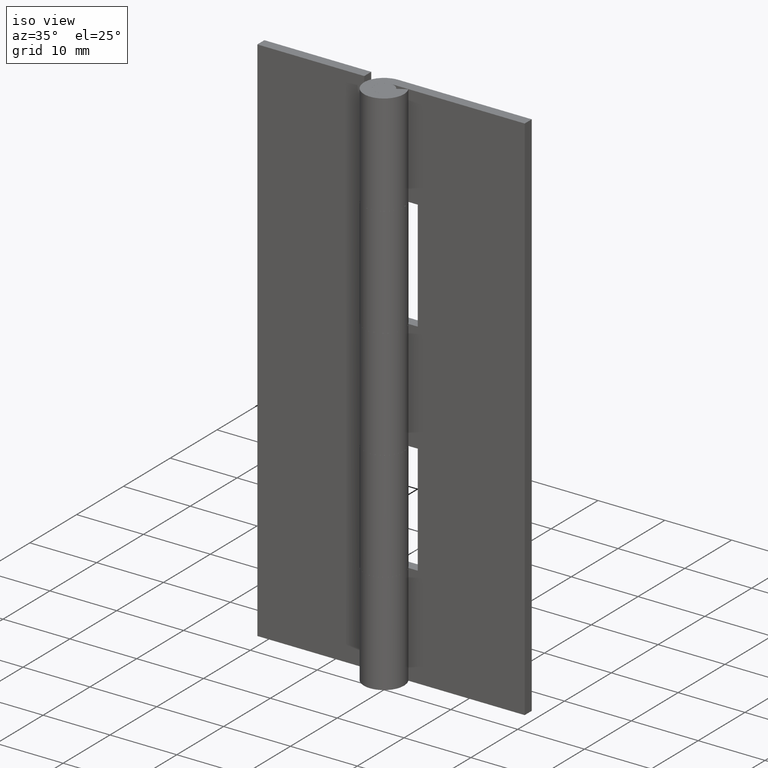
[diagram: clean part render]
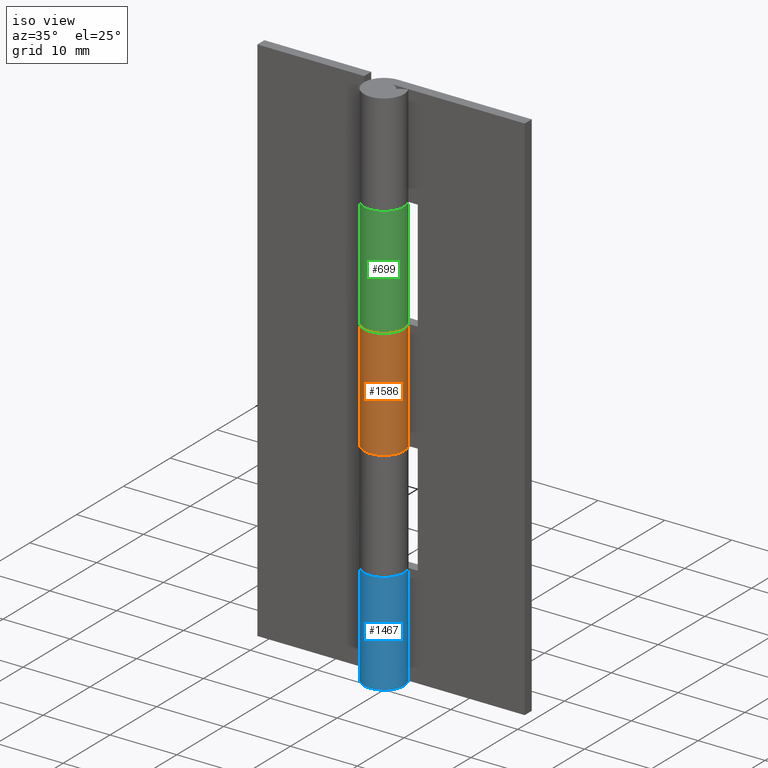
[diagram: same view with three faces highlighted in distinct colors, each labeled with its STEP entity id]
A machine part, iso view with three faces highlighted in distinct colors.
Their STEP definitions:

[orange] entity #1586 — the highlighted face is a freeform B-spline surface patch.
#766=CARTESIAN_POINT('',(2.626309197333780,1.450000000000000,31.750000000000000));
#767=VERTEX_POINT('',#766);
#768=CARTESIAN_POINT('',(-5.510743E-016,3.0,31.750000000000000));
#769=VERTEX_POINT('',#768);
#770=CARTESIAN_POINT('',(2.626309197333780,1.450000000000000,31.750000000000000));
#771=CARTESIAN_POINT('',(3.733431584505770,-0.555272902071675,31.750000000000004));
#772=CARTESIAN_POINT('',(2.090650590886091,-2.151552952364324,31.750000000000000));
#773=CARTESIAN_POINT('',(0.447869597266413,-3.747833002656972,31.750000000000004));
#774=CARTESIAN_POINT('',(-1.524795068197689,-2.583602136552764,31.750000000000000));
#775=CARTESIAN_POINT('',(-3.497459733661792,-1.419371270448555,31.750000000000004));
#776=CARTESIAN_POINT('',(-2.894028888043301,0.790314364775722,31.750000000000000));
#777=CARTESIAN_POINT('',(-2.290598042424809,3.000000000000000,31.750000000000004));
#778=CARTESIAN_POINT('',(0.0,3.0,31.750000000000000));
#786=(BOUNDED_CURVE()B_SPLINE_CURVE(2,(#770,#771,#772,#773,#774,#775,#776,#777,#778),.UNSPECIFIED.,.F.,.U.)B_SPLINE_CURVE_WITH_KNOTS((3,2,2,2,3),(0.0,0.250000000000000,0.500000000000000,0.750000000000000,1.0),.UNSPECIFIED.)CURVE()GEOMETRIC_REPRESENTATION_ITEM()RATIONAL_B_SPLINE_CURVE((1.0,0.794807562115481,1.0,0.794807562115481,1.0,0.794807562115481,1.0,0.794807562115481,1.0))REPRESENTATION_ITEM(''));
#787=EDGE_CURVE('',#767,#769,#786,.T.);
#958=CARTESIAN_POINT('',(-5.510729E-016,3.0,48.250000000000000));
#959=VERTEX_POINT('',#958);
#965=CARTESIAN_POINT('',(2.626309197333780,1.450000000000000,48.250000000000000));
#966=VERTEX_POINT('',#965);
#967=CARTESIAN_POINT('',(0.0,3.0,48.250000000000000));
#968=CARTESIAN_POINT('',(-2.290598042424808,3.0,48.250000000000007));
#969=CARTESIAN_POINT('',(-2.894028888043301,0.790314364775724,48.250000000000000));
#970=CARTESIAN_POINT('',(-3.497459733661794,-1.419371270448550,48.250000000000007));
#971=CARTESIAN_POINT('',(-1.524795068197693,-2.583602136552761,48.250000000000000));
#972=CARTESIAN_POINT('',(0.447869597266408,-3.747833002656974,48.250000000000007));
#973=CARTESIAN_POINT('',(2.090650590886088,-2.151552952364328,48.250000000000000));
#974=CARTESIAN_POINT('',(3.733431584505768,-0.555272902071681,48.250000000000007));
#975=CARTESIAN_POINT('',(2.626309197333781,1.449999999999996,48.250000000000000));
#983=(BOUNDED_CURVE()B_SPLINE_CURVE(2,(#967,#968,#969,#970,#971,#972,#973,#974,#975),.UNSPECIFIED.,.F.,.U.)B_SPLINE_CURVE_WITH_KNOTS((3,2,2,2,3),(0.0,0.250000000000000,0.500000000000000,0.750000000000000,1.0),.UNSPECIFIED.)CURVE()GEOMETRIC_REPRESENTATION_ITEM()RATIONAL_B_SPLINE_CURVE((1.0,0.794807562115481,1.0,0.794807562115481,1.0,0.794807562115481,1.0,0.794807562115481,1.0))REPRESENTATION_ITEM(''));
#984=EDGE_CURVE('',#959,#966,#983,.T.);
#1318=CARTESIAN_POINT('',(2.626309197333780,1.450000000000000,48.250000000000000));
#1319=CARTESIAN_POINT('',(2.626309197333780,1.450000000000000,31.750000000000000));
#1320=QUASI_UNIFORM_CURVE('',1,(#1318,#1319),.UNSPECIFIED.,.F.,.U.);
#1321=EDGE_CURVE('',#966,#767,#1320,.T.);
#1415=CARTESIAN_POINT('',(-5.510729E-016,3.0,48.250000000000000));
#1416=CARTESIAN_POINT('',(-5.510743E-016,3.0,31.750000000000000));
#1417=QUASI_UNIFORM_CURVE('',1,(#1415,#1416),.UNSPECIFIED.,.F.,.U.);
#1418=EDGE_CURVE('',#959,#769,#1417,.T.);
#1558=CARTESIAN_POINT('',(0.083590388003215,2.998835215051582,48.662500000000001));
#1559=CARTESIAN_POINT('',(0.083590388003215,2.998835215051582,31.327187499999990));
#1560=CARTESIAN_POINT('',(-3.597715494687123,3.101448985074057,48.662500000000009));
#1561=CARTESIAN_POINT('',(-3.597715494687123,3.101448985074057,31.327187500000001));
#1562=CARTESIAN_POINT('',(-2.953784589413351,-0.524553714450863,48.662500000000001));
#1563=CARTESIAN_POINT('',(-2.953784589413351,-0.524553714450863,31.327187499999990));
#1564=CARTESIAN_POINT('',(-2.309853684139579,-4.150556413975786,48.662500000000009));
#1565=CARTESIAN_POINT('',(-2.309853684139579,-4.150556413975786,31.327187500000001));
#1566=CARTESIAN_POINT('',(1.111023909722692,-2.786687257663569,48.662500000000001));
#1567=CARTESIAN_POINT('',(1.111023909722692,-2.786687257663569,31.327187499999990));
#1568=CARTESIAN_POINT('',(4.531901503584964,-1.422818101351353,48.662500000000009));
#1569=CARTESIAN_POINT('',(4.531901503584964,-1.422818101351353,31.327187500000001));
#1570=CARTESIAN_POINT('',(2.504447473759407,1.651587978637567,48.662500000000001));
#1571=CARTESIAN_POINT('',(2.504447473759407,1.651587978637567,31.327187499999990));
#1579=(BOUNDED_SURFACE()B_SPLINE_SURFACE(1,2,((#1558,#1560,#1562,#1564,#1566,#1568,#1570),(#1559,#1561,#1563,#1565,#1567,#1569,#1571)),.UNSPECIFIED.,.F.,.F.,.U.)B_SPLINE_SURFACE_WITH_KNOTS((2,2),(3,2,2,3),(0.0,17.335312500000011),(0.0,5.702297214197751,11.404594428395500,17.106891642593251),.UNSPECIFIED.)GEOMETRIC_REPRESENTATION_ITEM()RATIONAL_B_SPLINE_SURFACE(((1.0,0.631578351302498,1.0,0.631578351302498,1.0,0.631578351302498,1.0),(1.0,0.631578351302498,1.0,0.631578351302498,1.0,0.631578351302498,1.0)))REPRESENTATION_ITEM('')SURFACE());
#1580=ORIENTED_EDGE('',*,*,#787,.F.);
#1581=ORIENTED_EDGE('',*,*,#1321,.F.);
#1582=ORIENTED_EDGE('',*,*,#984,.F.);
#1583=ORIENTED_EDGE('',*,*,#1418,.T.);
#1584=EDGE_LOOP('',(#1580,#1581,#1582,#1583));
#1585=FACE_OUTER_BOUND('',#1584,.T.);
#1586=ADVANCED_FACE('',(#1585),#1579,.T.);

[blue] entity #1467 — the highlighted face is a freeform B-spline surface patch.
#872=CARTESIAN_POINT('',(-5.510743E-016,3.0,15.250000000000000));
#873=VERTEX_POINT('',#872);
#874=CARTESIAN_POINT('',(2.626309197333780,1.450000000000000,15.250000000000000));
#875=VERTEX_POINT('',#874);
#876=CARTESIAN_POINT('',(0.0,3.0,15.250000000000000));
#877=CARTESIAN_POINT('',(-2.290598042424808,3.0,15.250000000000005));
#878=CARTESIAN_POINT('',(-2.894028888043301,0.790314364775724,15.250000000000000));
#879=CARTESIAN_POINT('',(-3.497459733661794,-1.419371270448550,15.250000000000005));
#880=CARTESIAN_POINT('',(-1.524795068197693,-2.583602136552761,15.250000000000000));
#881=CARTESIAN_POINT('',(0.447869597266408,-3.747833002656974,15.250000000000005));
#882=CARTESIAN_POINT('',(2.090650590886088,-2.151552952364328,15.250000000000000));
#883=CARTESIAN_POINT('',(3.733431584505768,-0.555272902071681,15.250000000000005));
#884=CARTESIAN_POINT('',(2.626309197333781,1.449999999999996,15.250000000000000));
#892=(BOUNDED_CURVE()B_SPLINE_CURVE(2,(#876,#877,#878,#879,#880,#881,#882,#883,#884),.UNSPECIFIED.,.F.,.U.)B_SPLINE_CURVE_WITH_KNOTS((3,2,2,2,3),(0.0,0.250000000000000,0.500000000000000,0.750000000000000,1.0),.UNSPECIFIED.)CURVE()GEOMETRIC_REPRESENTATION_ITEM()RATIONAL_B_SPLINE_CURVE((1.0,0.794807562115481,1.0,0.794807562115481,1.0,0.794807562115481,1.0,0.794807562115481,1.0))REPRESENTATION_ITEM(''));
#893=EDGE_CURVE('',#873,#875,#892,.T.);
#1118=CARTESIAN_POINT('',(-5.510729E-016,3.0,0.0));
#1119=VERTEX_POINT('',#1118);
#1162=CARTESIAN_POINT('',(2.626309197333780,1.450000000000000,0.0));
#1163=VERTEX_POINT('',#1162);
#1169=CARTESIAN_POINT('',(2.626309197333780,1.450000000000000,0.0));
#1170=CARTESIAN_POINT('',(3.733431584505770,-0.555272902071675,0.0));
#1171=CARTESIAN_POINT('',(2.090650590886091,-2.151552952364324,0.0));
#1172=CARTESIAN_POINT('',(0.447869597266413,-3.747833002656972,0.0));
#1173=CARTESIAN_POINT('',(-1.524795068197689,-2.583602136552764,0.0));
#1174=CARTESIAN_POINT('',(-3.497459733661792,-1.419371270448555,0.0));
#1175=CARTESIAN_POINT('',(-2.894028888043301,0.790314364775722,0.0));
#1176=CARTESIAN_POINT('',(-2.290598042424809,3.000000000000000,0.0));
#1177=CARTESIAN_POINT('',(0.0,3.0,0.0));
#1185=(BOUNDED_CURVE()B_SPLINE_CURVE(2,(#1169,#1170,#1171,#1172,#1173,#1174,#1175,#1176,#1177),.UNSPECIFIED.,.F.,.U.)B_SPLINE_CURVE_WITH_KNOTS((3,2,2,2,3),(0.0,0.250000000000000,0.500000000000000,0.750000000000000,1.0),.UNSPECIFIED.)CURVE()GEOMETRIC_REPRESENTATION_ITEM()RATIONAL_B_SPLINE_CURVE((1.0,0.794807562115481,1.0,0.794807562115481,1.0,0.794807562115481,1.0,0.794807562115481,1.0))REPRESENTATION_ITEM(''));
#1186=EDGE_CURVE('',#1163,#1119,#1185,.T.);
#1427=CARTESIAN_POINT('',(-5.510743E-016,3.0,15.250000000000000));
#1428=CARTESIAN_POINT('',(-5.510729E-016,3.0,0.0));
#1429=QUASI_UNIFORM_CURVE('',1,(#1427,#1428),.UNSPECIFIED.,.F.,.U.);
#1430=EDGE_CURVE('',#873,#1119,#1429,.T.);
#1435=CARTESIAN_POINT('',(0.083590388003215,2.998835215051582,15.631250000000000));
#1436=CARTESIAN_POINT('',(0.083590388003215,2.998835215051582,-0.390781250000000));
#1437=CARTESIAN_POINT('',(-3.597715494687123,3.101448985074057,15.631250000000003));
#1438=CARTESIAN_POINT('',(-3.597715494687123,3.101448985074057,-0.390781250000000));
#1439=CARTESIAN_POINT('',(-2.953784589413351,-0.524553714450863,15.631250000000000));
#1440=CARTESIAN_POINT('',(-2.953784589413351,-0.524553714450863,-0.390781250000000));
#1441=CARTESIAN_POINT('',(-2.309853684139579,-4.150556413975786,15.631250000000003));
#1442=CARTESIAN_POINT('',(-2.309853684139579,-4.150556413975786,-0.390781250000000));
#1443=CARTESIAN_POINT('',(1.111023909722692,-2.786687257663569,15.631250000000000));
#1444=CARTESIAN_POINT('',(1.111023909722692,-2.786687257663569,-0.390781250000000));
#1445=CARTESIAN_POINT('',(4.531901503584964,-1.422818101351353,15.631250000000003));
#1446=CARTESIAN_POINT('',(4.531901503584964,-1.422818101351353,-0.390781250000000));
#1447=CARTESIAN_POINT('',(2.504447473759407,1.651587978637567,15.631250000000000));
#1448=CARTESIAN_POINT('',(2.504447473759407,1.651587978637567,-0.390781250000000));
#1456=(BOUNDED_SURFACE()B_SPLINE_SURFACE(1,2,((#1435,#1437,#1439,#1441,#1443,#1445,#1447),(#1436,#1438,#1440,#1442,#1444,#1446,#1448)),.UNSPECIFIED.,.F.,.F.,.U.)B_SPLINE_SURFACE_WITH_KNOTS((2,2),(3,2,2,3),(0.0,16.022031250000001),(0.0,5.702297214197751,11.404594428395500,17.106891642593251),.UNSPECIFIED.)GEOMETRIC_REPRESENTATION_ITEM()RATIONAL_B_SPLINE_SURFACE(((1.0,0.631578351302498,1.0,0.631578351302498,1.0,0.631578351302498,1.0),(1.0,0.631578351302498,1.0,0.631578351302498,1.0,0.631578351302498,1.0)))REPRESENTATION_ITEM('')SURFACE());
#1457=CARTESIAN_POINT('',(2.626309197333780,1.450000000000000,15.250000000000000));
#1458=CARTESIAN_POINT('',(2.626309197333780,1.450000000000000,0.0));
#1459=QUASI_UNIFORM_CURVE('',1,(#1457,#1458),.UNSPECIFIED.,.F.,.U.);
#1460=EDGE_CURVE('',#875,#1163,#1459,.T.);
#1461=ORIENTED_EDGE('',*,*,#1460,.F.);
#1462=ORIENTED_EDGE('',*,*,#893,.F.);
#1463=ORIENTED_EDGE('',*,*,#1430,.T.);
#1464=ORIENTED_EDGE('',*,*,#1186,.F.);
#1465=EDGE_LOOP('',(#1461,#1462,#1463,#1464));
#1466=FACE_OUTER_BOUND('',#1465,.T.);
#1467=ADVANCED_FACE('',(#1466),#1456,.T.);

[green] entity #699 — the highlighted face is a freeform B-spline surface patch.
#155=CARTESIAN_POINT('',(-2.626309197333780,1.450000000000000,48.250000000000000));
#156=VERTEX_POINT('',#155);
#157=CARTESIAN_POINT('',(0.0,3.0,48.250000000000000));
#158=VERTEX_POINT('',#157);
#159=CARTESIAN_POINT('',(-2.626309197333780,1.450000000000000,48.250000000000000));
#160=CARTESIAN_POINT('',(-3.733431584505770,-0.555272902071675,48.250000000000014));
#161=CARTESIAN_POINT('',(-2.090650590886091,-2.151552952364324,48.250000000000000));
#162=CARTESIAN_POINT('',(-0.447869597266413,-3.747833002656972,48.250000000000014));
#163=CARTESIAN_POINT('',(1.524795068197689,-2.583602136552764,48.250000000000000));
#164=CARTESIAN_POINT('',(3.497459733661792,-1.419371270448555,48.250000000000014));
#165=CARTESIAN_POINT('',(2.894028888043301,0.790314364775722,48.250000000000000));
#166=CARTESIAN_POINT('',(2.290598042424809,3.000000000000000,48.250000000000014));
#167=CARTESIAN_POINT('',(0.0,3.0,48.250000000000000));
#175=(BOUNDED_CURVE()B_SPLINE_CURVE(2,(#159,#160,#161,#162,#163,#164,#165,#166,#167),.UNSPECIFIED.,.F.,.U.)B_SPLINE_CURVE_WITH_KNOTS((3,2,2,2,3),(0.0,0.250000000000000,0.500000000000000,0.750000000000000,1.0),.UNSPECIFIED.)CURVE()GEOMETRIC_REPRESENTATION_ITEM()RATIONAL_B_SPLINE_CURVE((1.0,0.794807562115481,1.0,0.794807562115481,1.0,0.794807562115481,1.0,0.794807562115481,1.0))REPRESENTATION_ITEM(''));
#176=EDGE_CURVE('',#156,#158,#175,.T.);
#333=CARTESIAN_POINT('',(0.0,3.0,64.750000000000000));
#334=VERTEX_POINT('',#333);
#375=CARTESIAN_POINT('',(-2.626309197333780,1.450000000000000,64.750000000000000));
#376=VERTEX_POINT('',#375);
#382=CARTESIAN_POINT('',(0.0,3.0,64.750000000000000));
#383=CARTESIAN_POINT('',(2.290598042424808,3.0,64.750000000000014));
#384=CARTESIAN_POINT('',(2.894028888043301,0.790314364775724,64.750000000000000));
#385=CARTESIAN_POINT('',(3.497459733661794,-1.419371270448550,64.750000000000014));
#386=CARTESIAN_POINT('',(1.524795068197693,-2.583602136552761,64.750000000000000));
#387=CARTESIAN_POINT('',(-0.447869597266408,-3.747833002656974,64.750000000000014));
#388=CARTESIAN_POINT('',(-2.090650590886088,-2.151552952364328,64.750000000000000));
#389=CARTESIAN_POINT('',(-3.733431584505768,-0.555272902071681,64.750000000000014));
#390=CARTESIAN_POINT('',(-2.626309197333781,1.449999999999996,64.750000000000000));
#398=(BOUNDED_CURVE()B_SPLINE_CURVE(2,(#382,#383,#384,#385,#386,#387,#388,#389,#390),.UNSPECIFIED.,.F.,.U.)B_SPLINE_CURVE_WITH_KNOTS((3,2,2,2,3),(0.0,0.250000000000000,0.500000000000000,0.750000000000000,1.0),.UNSPECIFIED.)CURVE()GEOMETRIC_REPRESENTATION_ITEM()RATIONAL_B_SPLINE_CURVE((1.0,0.794807562115481,1.0,0.794807562115481,1.0,0.794807562115481,1.0,0.794807562115481,1.0))REPRESENTATION_ITEM(''));
#399=EDGE_CURVE('',#334,#376,#398,.T.);
#625=CARTESIAN_POINT('',(-2.626309197333780,1.450000000000000,64.750000000000000));
#626=CARTESIAN_POINT('',(-2.626309197333780,1.450000000000000,48.250000000000000));
#627=QUASI_UNIFORM_CURVE('',1,(#625,#626),.UNSPECIFIED.,.F.,.U.);
#628=EDGE_CURVE('',#376,#156,#627,.T.);
#667=CARTESIAN_POINT('',(-2.584887481324576,1.522615088882112,65.162500000000009));
#668=CARTESIAN_POINT('',(-2.584887481324576,1.522615088882112,47.827187500000001));
#669=CARTESIAN_POINT('',(-4.454017153952614,-1.650537421576552,65.162500000000009));
#670=CARTESIAN_POINT('',(-4.454017153952614,-1.650537421576552,47.827187500000001));
#671=CARTESIAN_POINT('',(-0.968449136630486,-2.839384840024272,65.162500000000009));
#672=CARTESIAN_POINT('',(-0.968449136630486,-2.839384840024272,47.827187500000001));
#673=CARTESIAN_POINT('',(2.517118880691642,-4.028232258471992,65.162500000000009));
#674=CARTESIAN_POINT('',(2.517118880691642,-4.028232258471992,47.827187500000001));
#675=CARTESIAN_POINT('',(2.976562347997527,-0.374268070349911,65.162500000000009));
#676=CARTESIAN_POINT('',(2.976562347997527,-0.374268070349911,47.827187500000001));
#677=CARTESIAN_POINT('',(3.436005815303412,3.279696117772171,65.162500000000009));
#678=CARTESIAN_POINT('',(3.436005815303412,3.279696117772171,47.827187500000001));
#679=CARTESIAN_POINT('',(-0.235377287183536,2.990752001199384,65.162500000000009));
#680=CARTESIAN_POINT('',(-0.235377287183536,2.990752001199384,47.827187500000001));
#688=(BOUNDED_SURFACE()B_SPLINE_SURFACE(1,2,((#667,#669,#671,#673,#675,#677,#679),(#668,#670,#672,#674,#676,#678,#680)),.UNSPECIFIED.,.F.,.F.,.U.)B_SPLINE_SURFACE_WITH_KNOTS((2,2),(3,2,2,3),(0.0,17.335312500000011),(0.0,5.702297214197750,11.404594428395500,17.106891642593251),.UNSPECIFIED.)GEOMETRIC_REPRESENTATION_ITEM()RATIONAL_B_SPLINE_SURFACE(((1.0,0.631578351302498,1.0,0.631578351302498,1.0,0.631578351302498,1.0),(1.0,0.631578351302498,1.0,0.631578351302498,1.0,0.631578351302498,1.0)))REPRESENTATION_ITEM('')SURFACE());
#689=ORIENTED_EDGE('',*,*,#176,.T.);
#690=CARTESIAN_POINT('',(0.0,3.0,64.750000000000000));
#691=CARTESIAN_POINT('',(0.0,3.0,48.250000000000000));
#692=QUASI_UNIFORM_CURVE('',1,(#690,#691),.UNSPECIFIED.,.F.,.U.);
#693=EDGE_CURVE('',#334,#158,#692,.T.);
#694=ORIENTED_EDGE('',*,*,#693,.F.);
#695=ORIENTED_EDGE('',*,*,#399,.T.);
#696=ORIENTED_EDGE('',*,*,#628,.T.);
#697=EDGE_LOOP('',(#689,#694,#695,#696));
#698=FACE_OUTER_BOUND('',#697,.T.);
#699=ADVANCED_FACE('',(#698),#688,.T.);